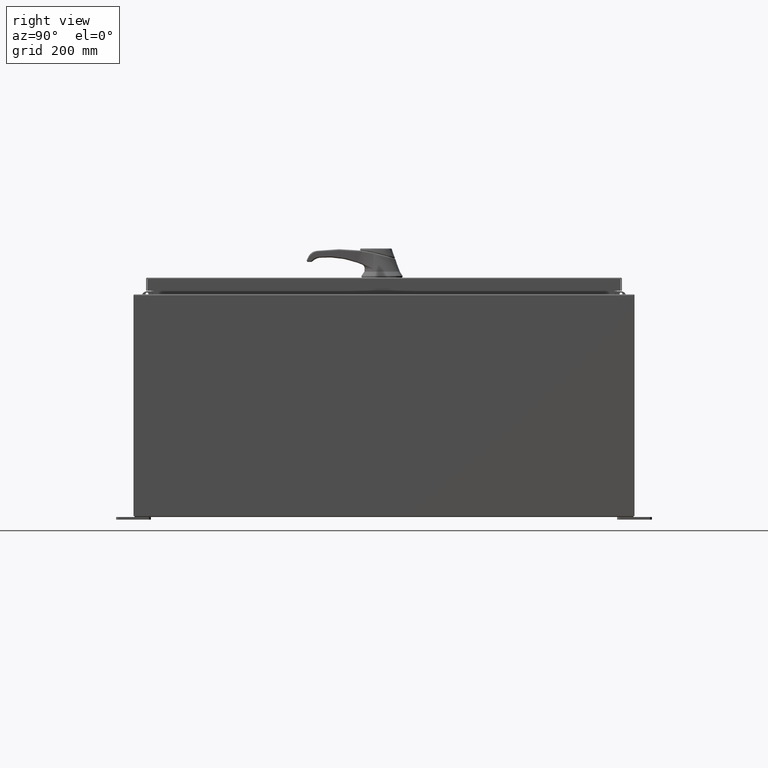
[diagram: clean part render]
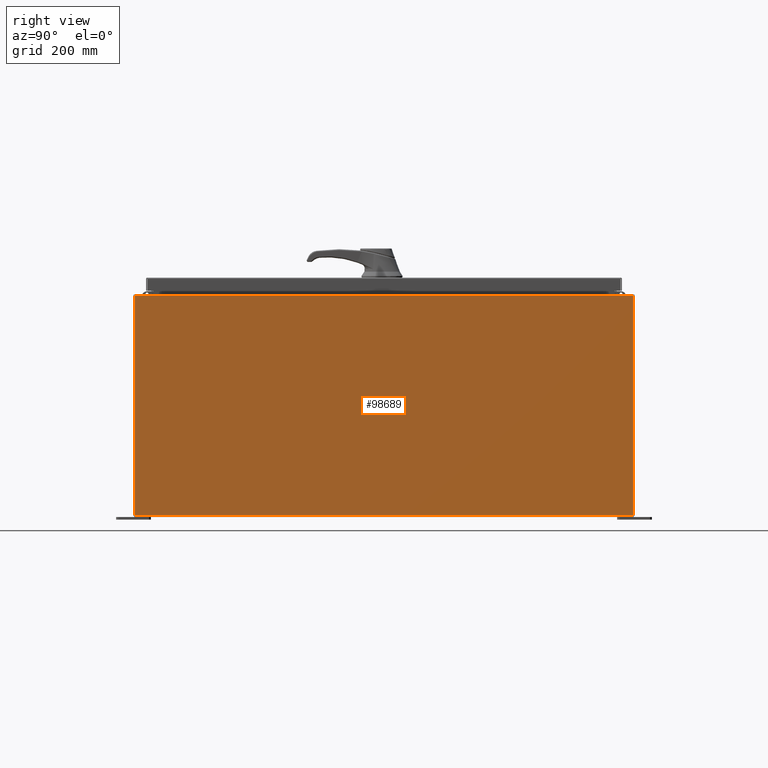
[diagram: same view with one face highlighted and labeled with its STEP entity id]
A machine part, right view. The second image highlights one B-rep face of the part: STEP entity #98689.
In plain terms, the highlighted planar face has unit normal (-1, 0, 0).
Its self-contained STEP definition (entity closure, byte-faithful):
#5457 = DIRECTION ( 'NONE',  ( 3.430827668758846700E-015, 0.0000000000000000000, 1.000000000000000000 ) ) ;
#6001 = FACE_OUTER_BOUND ( 'NONE', #63453, .T. ) ;
#6698 = CARTESIAN_POINT ( 'NONE',  ( 14.99999999999999800, -17.92530000000000000, 0.01300000000000023200 ) ) ;
#16091 = LINE ( 'NONE', #77771, #114174 ) ;
#16346 = LINE ( 'NONE', #27575, #19347 ) ;
#18560 = EDGE_CURVE ( 'NONE', #54273, #73580, #16346, .T. ) ;
#19347 = VECTOR ( 'NONE', #122647, 39.37007874015748100 ) ;
#21607 = AXIS2_PLACEMENT_3D ( 'NONE', #61745, #62154, #5457 ) ;
#25436 = ORIENTED_EDGE ( 'NONE', *, *, #90773, .T. ) ;
#26978 = CARTESIAN_POINT ( 'NONE',  ( 15.00000000000005300, -17.92530000000000000, 15.83760000000000000 ) ) ;
#27575 = CARTESIAN_POINT ( 'NONE',  ( 14.99999999999999800, -17.92530000000000000, 0.01299999999999984700 ) ) ;
#30231 = LINE ( 'NONE', #61987, #77708 ) ;
#37593 = CARTESIAN_POINT ( 'NONE',  ( 14.99999999999999800, -17.92530000000000000, -5.172322868739428200E-014 ) ) ;
#39721 = ORIENTED_EDGE ( 'NONE', *, *, #18560, .F. ) ;
#41543 = EDGE_CURVE ( 'NONE', #54273, #68852, #30231, .T. ) ;
#42900 = VERTEX_POINT ( 'NONE', #26978 ) ;
#52638 = PLANE ( 'NONE',  #21607 ) ;
#54273 = VERTEX_POINT ( 'NONE', #106093 ) ;
#56140 = ORIENTED_EDGE ( 'NONE', *, *, #41543, .T. ) ;
#58926 = LINE ( 'NONE', #37593, #106537 ) ;
#61745 = CARTESIAN_POINT ( 'NONE',  ( 14.99999999999999800, 0.0000000000000000000, -5.172322868739428200E-014 ) ) ;
#61987 = CARTESIAN_POINT ( 'NONE',  ( 14.99999999999999800, 17.92530000000000000, -4.926328407896216100E-014 ) ) ;
#62154 = DIRECTION ( 'NONE',  ( -1.000000000000000000, 0.0000000000000000000, 3.430827668758846700E-015 ) ) ;
#63453 = EDGE_LOOP ( 'NONE', ( #25436, #109318, #39721, #56140 ) ) ;
#68852 = VERTEX_POINT ( 'NONE', #116932 ) ;
#73580 = VERTEX_POINT ( 'NONE', #6698 ) ;
#77708 = VECTOR ( 'NONE', #118979, 39.37007874015748100 ) ;
#77771 = CARTESIAN_POINT ( 'NONE',  ( 15.00000000000005300, 17.92530000000000000, 15.83759999999998600 ) ) ;
#85585 = EDGE_CURVE ( 'NONE', #42900, #73580, #58926, .T. ) ;
#90773 = EDGE_CURVE ( 'NONE', #68852, #42900, #16091, .T. ) ;
#98689 = ADVANCED_FACE ( 'NONE', ( #6001 ), #52638, .F. ) ;
#104019 = DIRECTION ( 'NONE',  ( -3.430827668758847500E-015, 0.0000000000000000000, -1.000000000000000000 ) ) ;
#106093 = CARTESIAN_POINT ( 'NONE',  ( 14.99999999999999800, 17.92530000000000000, 0.01299999999999766100 ) ) ;
#106537 = VECTOR ( 'NONE', #104019, 39.37007874015748100 ) ;
#109318 = ORIENTED_EDGE ( 'NONE', *, *, #85585, .T. ) ;
#114174 = VECTOR ( 'NONE', #116013, 39.37007874015748100 ) ;
#116013 = DIRECTION ( 'NONE',  ( -0.0000000000000000000, -1.000000000000000000, -0.0000000000000000000 ) ) ;
#116932 = CARTESIAN_POINT ( 'NONE',  ( 15.00000000000005300, 17.92530000000000000, 15.83759999999998600 ) ) ;
#118979 = DIRECTION ( 'NONE',  ( 3.430827668758847500E-015, -1.372331067503538800E-016, 1.000000000000000000 ) ) ;
#122647 = DIRECTION ( 'NONE',  ( 2.091457255054409500E-031, -1.000000000000000000, 6.096072018129156600E-017 ) ) ;